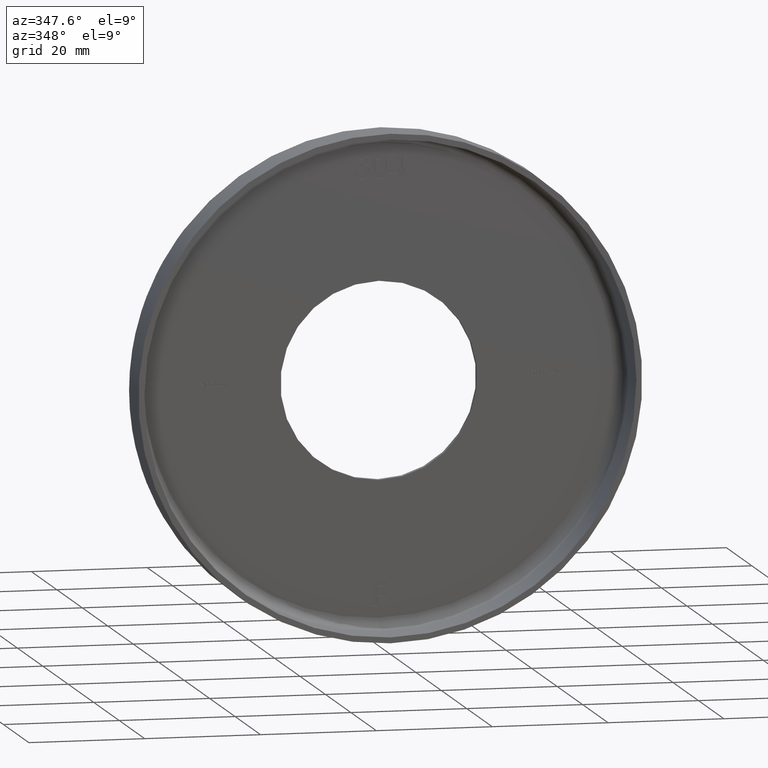
[diagram: clean part render]
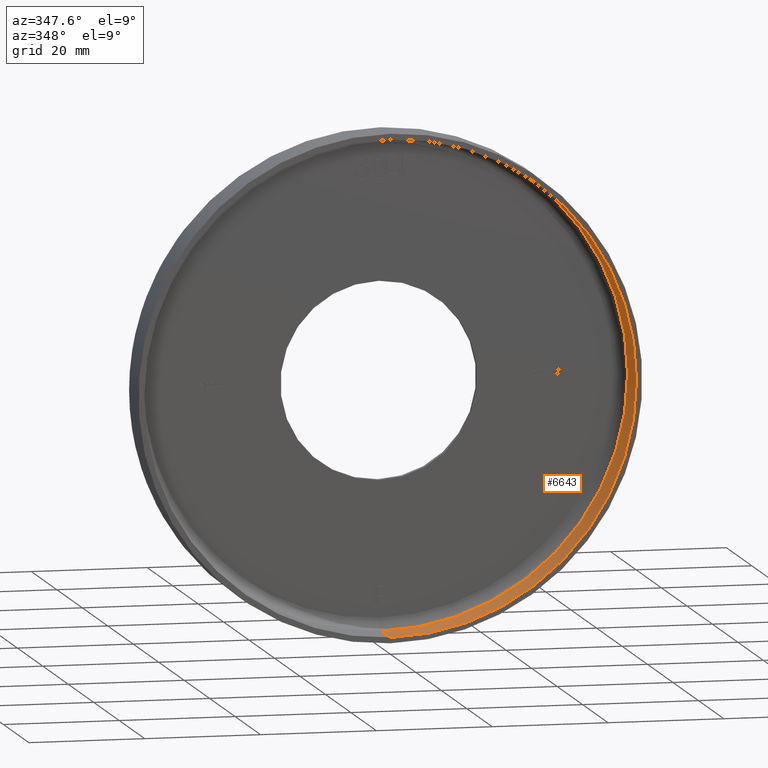
[diagram: same view with one face highlighted and labeled with its STEP entity id]
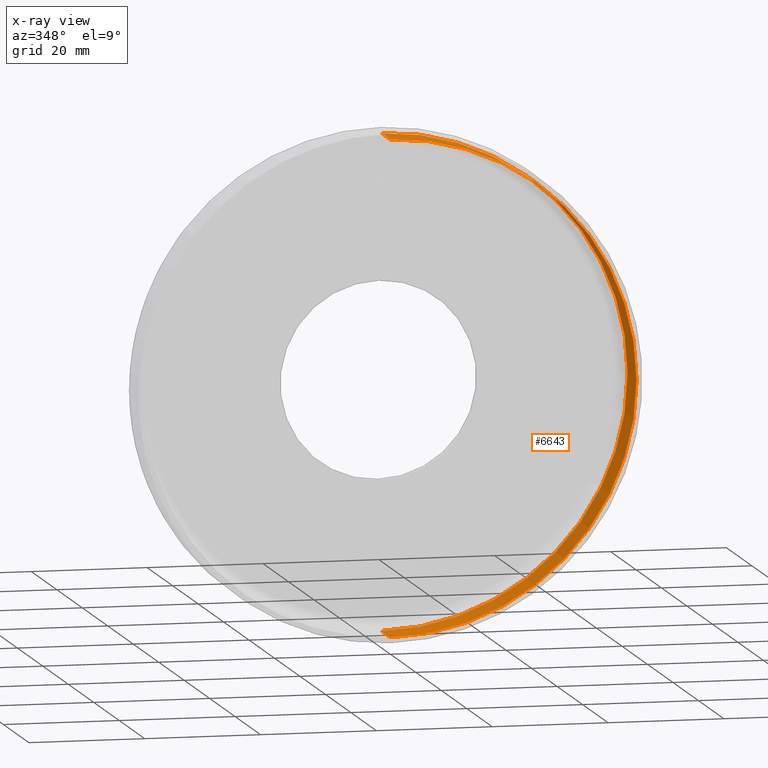
[diagram: x-ray of the same camera — body ghosted, the highlighted face saturated]
A machine part, auxiliary view. The second image highlights one B-rep face of the part: STEP entity #6643.
The next image is the same camera in x-ray: the body ghosted, the highlighted face saturated — about 0% of this face is hidden behind the body in this view.
In plain terms, the highlighted cylindrical surface (partial cylindrical patch) has radius 42.5 mm, axis along (-0, -1, -0).
Its self-contained STEP definition (entity closure, byte-faithful):
#113 = VECTOR ( 'NONE', #9055, 1000.000000000000000 ) ;
#547 = CARTESIAN_POINT ( 'NONE',  ( 0.000000000000000000, -1.224646799147353207E-16, -42.49999999999999289 ) ) ;
#1423 = CARTESIAN_POINT ( 'NONE',  ( 0.000000000000000000, 6.999999999999999112, 0.000000000000000000 ) ) ;
#1661 = CARTESIAN_POINT ( 'NONE',  ( 0.000000000000000000, 0.000000000000000000, 0.000000000000000000 ) ) ;
#1919 = CIRCLE ( 'NONE', #3915, 42.49999999999999289 ) ;
#2230 = CARTESIAN_POINT ( 'NONE',  ( 5.204748896376250107E-15, 0.000000000000000000, 42.49999999999999289 ) ) ;
#2726 = VECTOR ( 'NONE', #10301, 1000.000000000000000 ) ;
#2839 = VERTEX_POINT ( 'NONE', #13445 ) ;
#3079 = EDGE_CURVE ( 'NONE', #3099, #2839, #1919, .T. ) ;
#3099 = VERTEX_POINT ( 'NONE', #547 ) ;
#3672 = LINE ( 'NONE', #7998, #113 ) ;
#3847 = DIRECTION ( 'NONE',  ( 0.000000000000000000, 0.000000000000000000, -1.000000000000000000 ) ) ;
#3868 = EDGE_CURVE ( 'NONE', #9322, #3099, #3672, .T. ) ;
#3915 = AXIS2_PLACEMENT_3D ( 'NONE', #11707, #10680, #3847 ) ;
#4080 = ORIENTED_EDGE ( 'NONE', *, *, #7486, .F. ) ;
#4319 = ORIENTED_EDGE ( 'NONE', *, *, #3868, .T. ) ;
#4973 = DIRECTION ( 'NONE',  ( -0.000000000000000000, -1.000000000000000000, -0.000000000000000000 ) ) ;
#5573 = CARTESIAN_POINT ( 'NONE',  ( 0.000000000000000000, 6.999999999999999112, -42.49999999999999289 ) ) ;
#6209 = VERTEX_POINT ( 'NONE', #11856 ) ;
#6643 = ADVANCED_FACE ( 'NONE', ( #11485 ), #14156, .F. ) ;
#6794 = AXIS2_PLACEMENT_3D ( 'NONE', #1661, #11889, #7281 ) ;
#7281 = DIRECTION ( 'NONE',  ( 0.000000000000000000, 0.000000000000000000, -1.000000000000000000 ) ) ;
#7486 = EDGE_CURVE ( 'NONE', #9322, #6209, #13068, .T. ) ;
#7998 = CARTESIAN_POINT ( 'NONE',  ( 0.000000000000000000, 0.000000000000000000, -42.49999999999999289 ) ) ;
#9055 = DIRECTION ( 'NONE',  ( -0.000000000000000000, -1.000000000000000000, -0.000000000000000000 ) ) ;
#9322 = VERTEX_POINT ( 'NONE', #5573 ) ;
#9529 = DIRECTION ( 'NONE',  ( 0.000000000000000000, 0.000000000000000000, -1.000000000000000000 ) ) ;
#9961 = ORIENTED_EDGE ( 'NONE', *, *, #13208, .F. ) ;
#10301 = DIRECTION ( 'NONE',  ( -0.000000000000000000, -1.000000000000000000, -0.000000000000000000 ) ) ;
#10680 = DIRECTION ( 'NONE',  ( -0.000000000000000000, -1.000000000000000000, -0.000000000000000000 ) ) ;
#10919 = LINE ( 'NONE', #2230, #2726 ) ;
#11245 = EDGE_LOOP ( 'NONE', ( #9961, #4080, #4319, #12940 ) ) ;
#11485 = FACE_OUTER_BOUND ( 'NONE', #11245, .T. ) ;
#11707 = CARTESIAN_POINT ( 'NONE',  ( 0.000000000000000000, -1.224646799147353207E-16, 0.000000000000000000 ) ) ;
#11848 = AXIS2_PLACEMENT_3D ( 'NONE', #1423, #4973, #9529 ) ;
#11856 = CARTESIAN_POINT ( 'NONE',  ( 5.204748896376250107E-15, 6.999999999999999112, 42.49999999999999289 ) ) ;
#11889 = DIRECTION ( 'NONE',  ( -0.000000000000000000, -1.000000000000000000, -0.000000000000000000 ) ) ;
#12940 = ORIENTED_EDGE ( 'NONE', *, *, #3079, .T. ) ;
#13068 = CIRCLE ( 'NONE', #11848, 42.49999999999999289 ) ;
#13208 = EDGE_CURVE ( 'NONE', #6209, #2839, #10919, .T. ) ;
#13445 = CARTESIAN_POINT ( 'NONE',  ( 5.204748896376250107E-15, -1.224646799147353207E-16, 42.49999999999999289 ) ) ;
#14156 = CYLINDRICAL_SURFACE ( 'NONE', #6794, 42.49999999999999289 ) ;